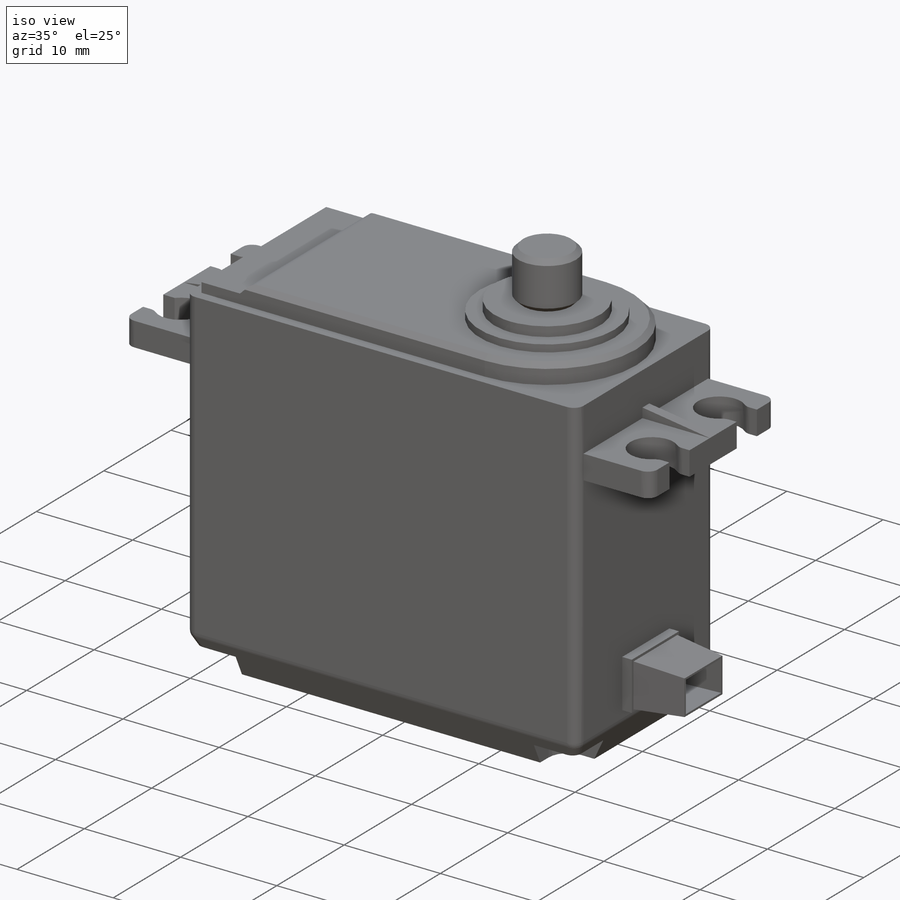
[diagram: iso view]
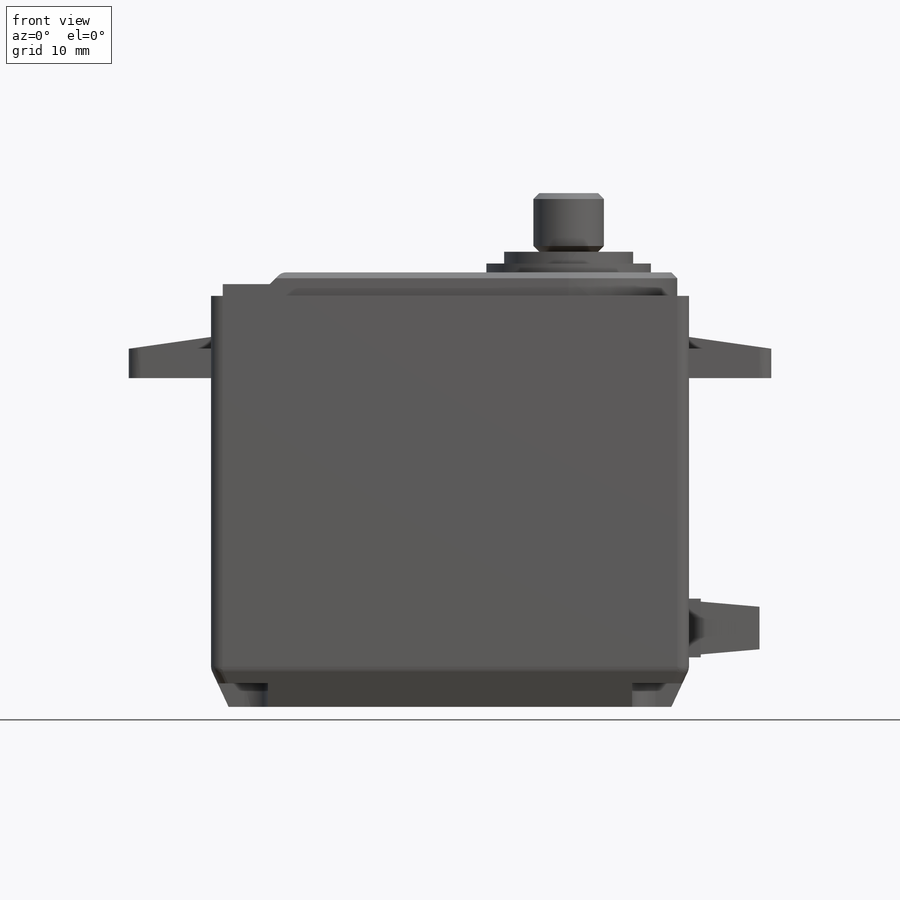
[diagram: front view]
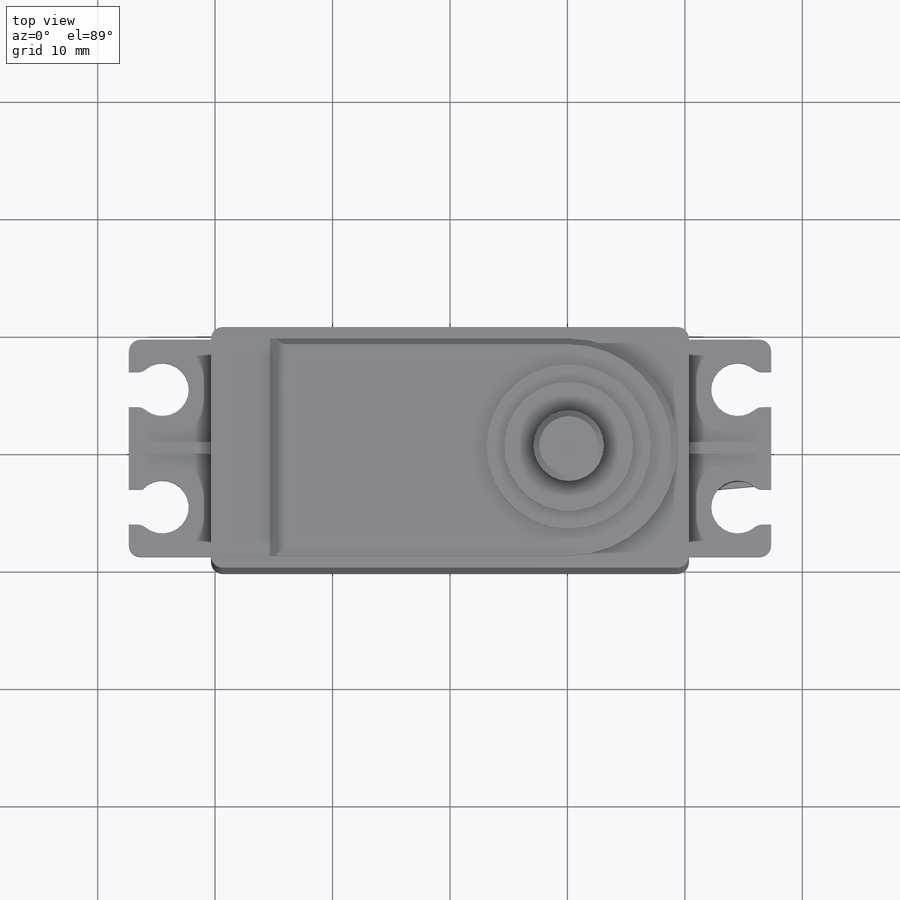
[diagram: top view]
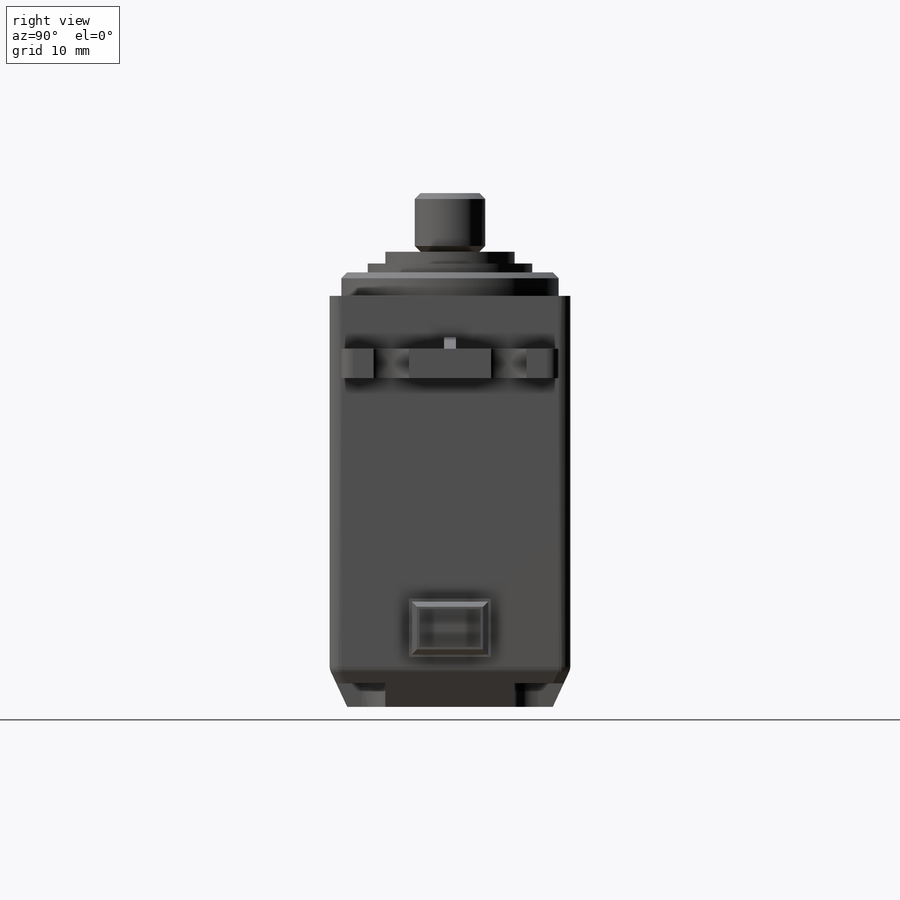
[diagram: right view]
SOLIDWORKS PART (.sldprt)
format: sldprt  version: not decoded by parser v0  size: 553,472 bytes
history: native  units: mm
features: sketch x15, extrude x9, plane x4, cut_extrude x3, chamfer x2, material x1, shell x1, cut_revolve x1, fillet x1 (+10 scaffold rows collapsed)
feature tree (47):
  scaffold x10  (default folders/planes/origin — collapsed)
  material  "PE High Density"
  plane  "Alzado"
  plane  "Planta"
  plane  "Vista lateral"
  sketch  "Croquis1"  dims[D1=40.7mm D2=35.0mm]
  extrude  "Saliente-Extruir1"  Depth=20.5mm
  plane  "Plano1"  Offset=9.25mm
  sketch  "Croquis2"  dims[D1=2.5mm D2=7.0mm D3=28.0mm]
  extrude  "Saliente-Extruir2"  Depth=18.5mm
  sketch  "Croquis3"  dims[D1=1.0mm]
  extrude  "Saliente-Extruir3"  Depth=1mm
  sketch  "Croquis4"  dims[D3=4.5mm D1=49.0mm D2=10.0mm D4=3.0mm D5=2.85mm]
  cut_extrude  "Cortar-Extruir1"  [1 undecoded]
  chamfer  "Chaflán1"  Distance=1.5mm Angle=65deg
  sketch  "Croquis5"  dims[D3=2.0mm D1=35.0mm D2=15.0mm]
  cut_extrude  "Cortar-Extruir2"  Depth=2mm
  sketch  "Croquis6"  dims[c1.D1=0.0mm c1.D2=1.0mm c2.D1=1.0mm]
  extrude  "Saliente-Extruir4"  Depth=2mm
  sketch  "Croquis9"  dims[c1.D1=5.0mm c1.D2=~3.536766mm c2.D2=45.0deg]
  cut_extrude  "Cortar-Extruir3"  [1 undecoded]
  sketch  "Croquis10"  dims[D1=14.0mm D2=1.5mm]
  extrude  "Saliente-Extruir5"  Depth=0.75mm
  sketch  "Croquis11"  dims[D1=0.0mm D2=1.5mm]
  extrude  "Saliente-Extruir6"  Depth=1mm
  sketch  "Croquis12"  dims[D1=6.0mm]
  extrude  "Saliente-Extruir7"  Depth=5mm
  sketch  "Croquis14"  dims[D1=7.0mm D2=5.0mm D3=3.5mm]
  extrude  "Saliente-Extruir8"  Depth=1mm
  sketch  "Croquis15"  dims[D1=0.0mm D2=0.25mm]
  extrude  "Saliente-Extruir9"  Depth=5mm
  shell  "Vaciado2"  Thickness=0.2mm
  chamfer  "Chaflán2"  Distance=0.5mm Angle=45deg
  sketch  "Croquis13"
  cut_revolve  "Cortar-Revolución1"  Angle=360deg
  fillet  "Redondeo2"  Radius=1mm
  sketch  "Croquis16"
  sketch  "Croquis17"
decode coverage: 27 of 32 modeling features carry decoded parameters
note: ~ marks probable driven/reference dimensions
note: 2 parameter values undecoded
note: suppression state not decoded; provenance and decode notes live in map.json
